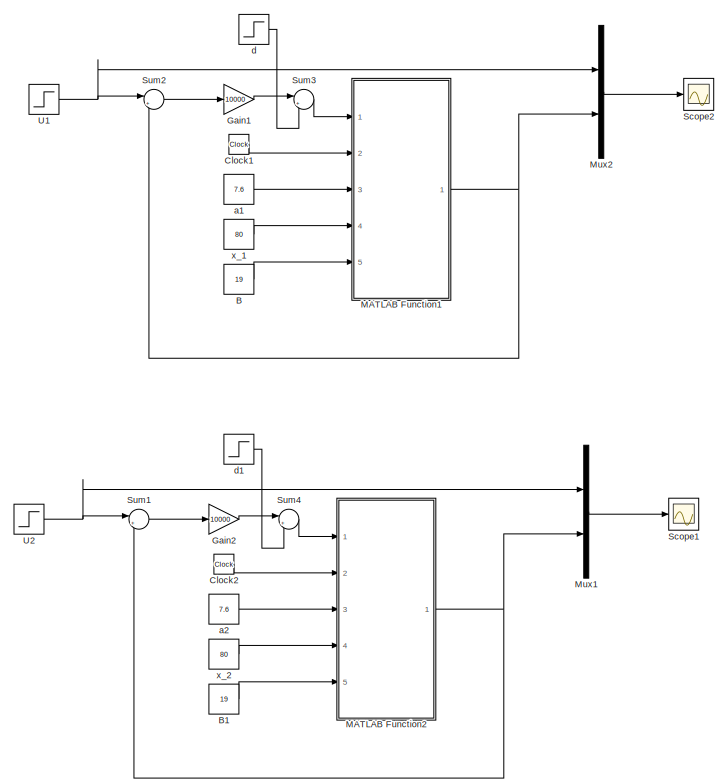
[diagram: root canvas - part 1/2, top center region]
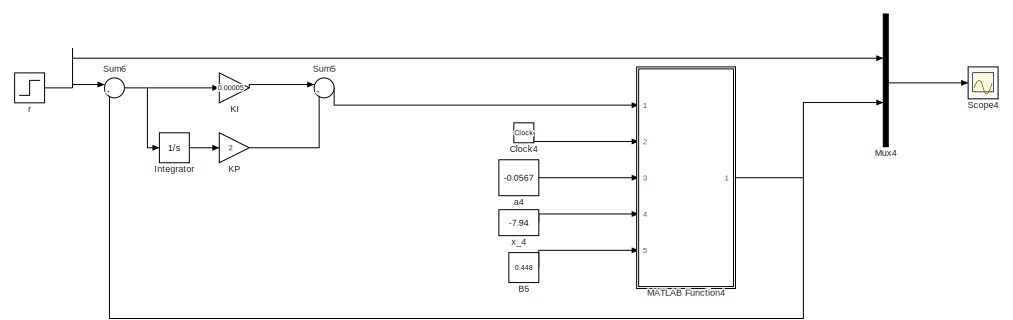
[diagram: root canvas - part 2/2, full width, bottom band]
MODEL slx_400c5a716cbe
KIND model
CONFIG AbsTol = auto
CONFIG EnableMultiTasking = off
CONFIG FixedStep = auto
CONFIG MaxStep = auto
CONFIG MinStep = auto
CONFIG RelTol = 1e-3
CONFIG SampleTimeConstraint = Unconstrained
CONFIG SolverName = VariableStepAuto
CONFIG StartTime = 0.0
CONFIG StopTime = 100
BLOCK [Constant] B
  Value = 19
BLOCK [Constant] B1
  Value = 19
BLOCK [Constant] B5
  Value = 0.448
BLOCK [Clock] Clock1
BLOCK [Clock] Clock2
BLOCK [Clock] Clock4
BLOCK [Gain] Gain1
  Gain = 10000
BLOCK [Gain] Gain2
  Gain = 10000
BLOCK [Integrator] Integrator
  Ports = [1, 1]
BLOCK [Gain] KI
  Gain = 0.00005
BLOCK [Gain] KP
  Gain = 2
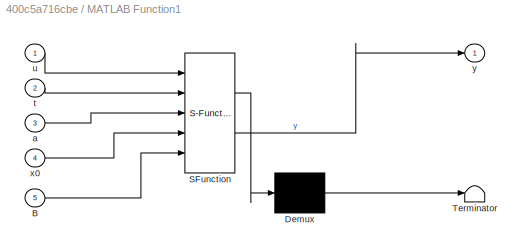
BLOCK [SubSystem] MATLAB Function1
  ErrorFcn = Stateflow.Translate.translate
  PermitHierarchicalResolution = ExplicitOnly
  Ports = [5, 1]
  RequestExecContextInheritance = off
  SFBlockType = MATLAB Function
  TreatAsAtomicUnit = on
BLOCK [Demux] MATLAB Function1/ Demux 
  Outputs = 1
  Ports = [1, 1]
BLOCK [S-Function] MATLAB Function1/ SFunction 
  EnableBusSupport = on
  FunctionName = sf_sfun
  PortCounts = [5 2]
  Ports = [5, 2]
  SFcnIsStateOwnerBlock = off
  SFunctionDeploymentMode = off
  Tag = Stateflow S-Function 1
BLOCK [Terminator] MATLAB Function1/ Terminator 
BLOCK [Inport] MATLAB Function1/B
  Port = 5
BLOCK [Inport] MATLAB Function1/a
  Port = 3
BLOCK [Inport] MATLAB Function1/t
  Port = 2
BLOCK [Inport] MATLAB Function1/u
BLOCK [Inport] MATLAB Function1/x0
  Port = 4
BLOCK [Outport] MATLAB Function1/y
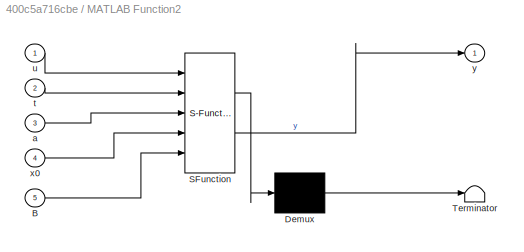
BLOCK [SubSystem] MATLAB Function2
  ErrorFcn = Stateflow.Translate.translate
  PermitHierarchicalResolution = ExplicitOnly
  Ports = [5, 1]
  RequestExecContextInheritance = off
  SFBlockType = MATLAB Function
  TreatAsAtomicUnit = on
BLOCK [Demux] MATLAB Function2/ Demux 
  Outputs = 1
  Ports = [1, 1]
BLOCK [S-Function] MATLAB Function2/ SFunction 
  EnableBusSupport = on
  FunctionName = sf_sfun
  PortCounts = [5 2]
  Ports = [5, 2]
  SFcnIsStateOwnerBlock = off
  SFunctionDeploymentMode = off
  Tag = Stateflow S-Function 2
BLOCK [Terminator] MATLAB Function2/ Terminator 
BLOCK [Inport] MATLAB Function2/B
  Port = 5
BLOCK [Inport] MATLAB Function2/a
  Port = 3
BLOCK [Inport] MATLAB Function2/t
  Port = 2
BLOCK [Inport] MATLAB Function2/u
BLOCK [Inport] MATLAB Function2/x0
  Port = 4
BLOCK [Outport] MATLAB Function2/y
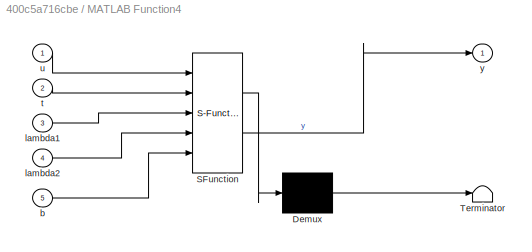
BLOCK [SubSystem] MATLAB Function4
  ErrorFcn = Stateflow.Translate.translate
  PermitHierarchicalResolution = ExplicitOnly
  Ports = [5, 1]
  RequestExecContextInheritance = off
  SFBlockType = MATLAB Function
  TreatAsAtomicUnit = on
BLOCK [Demux] MATLAB Function4/ Demux 
  Outputs = 1
  Ports = [1, 1]
BLOCK [S-Function] MATLAB Function4/ SFunction 
  EnableBusSupport = on
  FunctionName = sf_sfun
  PortCounts = [5 2]
  Ports = [5, 2]
  SFcnIsStateOwnerBlock = off
  SFunctionDeploymentMode = off
  Tag = Stateflow S-Function 4
BLOCK [Terminator] MATLAB Function4/ Terminator 
BLOCK [Inport] MATLAB Function4/b
  Port = 5
BLOCK [Inport] MATLAB Function4/lambda1
  Port = 3
BLOCK [Inport] MATLAB Function4/lambda2
  Port = 4
BLOCK [Inport] MATLAB Function4/t
  Port = 2
BLOCK [Inport] MATLAB Function4/u
BLOCK [Outport] MATLAB Function4/y
BLOCK [Mux] Mux1
  DisplayOption = bar
  Inputs = 2
  Ports = [2, 1]
BLOCK [Mux] Mux2
  DisplayOption = bar
  Inputs = 2
  Ports = [2, 1]
BLOCK [Mux] Mux4
  DisplayOption = bar
  Inputs = 2
  Ports = [2, 1]
BLOCK [Scope] Scope1
  Floating = off
  NumInputPorts = 1
  Ports = [1]
  ScopeSpecificationString = Simulink.scopes.TimeScopeBlockCfg('CurrentConfiguration', extmgr.ConfigurationSet(extmgr.Configuration('Core','General UI',true),extmgr.Configuration('Core','Source UI',true),extmgr.Configuration('Sources','WiredSimulink',true,'DataLoggingVariableName','ScopeData1'),extmgr.Configuration('Visuals','Time Domain',true,'SerializedDisplays',{struct('MinYLimReal','32.69247','MaxYLimReal','107.47861','YL...<+1464ch>
BLOCK [Scope] Scope2
  Floating = off
  NumInputPorts = 1
  Ports = [1]
  ScopeSpecificationString = Simulink.scopes.TimeScopeBlockCfg('CurrentConfiguration', extmgr.ConfigurationSet(extmgr.Configuration('Core','General UI',true),extmgr.Configuration('Core','Source UI',true),extmgr.Configuration('Sources','WiredSimulink',true,'DataLoggingVariableName','ScopeData2'),extmgr.Configuration('Visuals','Time Domain',true,'SerializedDisplays',{struct('MinYLimReal','78.28375','MaxYLimReal','98.9799','YLab...<+1456ch>
BLOCK [Scope] Scope4
  Floating = off
  NumInputPorts = 1
  Ports = [1]
  ScopeSpecificationString = Simulink.scopes.TimeScopeBlockCfg('CurrentConfiguration', extmgr.ConfigurationSet(extmgr.Configuration('Core','General UI',true),extmgr.Configuration('Core','Source UI',true),extmgr.Configuration('Sources','WiredSimulink',true,'DataLoggingVariableName','ScopeData3'),extmgr.Configuration('Visuals','Time Domain',true,'SerializedDisplays',{struct('MinYLimReal','19.15377','MaxYLimReal','20.12646','YLa...<+1458ch>
BLOCK [Sum] Sum1
  Inputs = |+-
  Ports = [2, 1]
BLOCK [Sum] Sum2
  Inputs = |+-
  Ports = [2, 1]
BLOCK [Sum] Sum3
  Inputs = |++
  Ports = [2, 1]
BLOCK [Sum] Sum4
  Inputs = |++
  Ports = [2, 1]
BLOCK [Sum] Sum5
  Inputs = |++
  Ports = [2, 1]
BLOCK [Sum] Sum6
  Inputs = |+-
  Ports = [2, 1]
BLOCK [Step] U1
  After = 80
  Before = 100
  SampleTime = 0
  Time = 20
BLOCK [Step] U2
  After = 80
  Before = 100
  SampleTime = 0
  Time = 20
BLOCK [Constant] a1
  Value = 7.6
BLOCK [Constant] a2
  Value = 7.6
BLOCK [Constant] a4
  Value = -0.0567
BLOCK [Step] d
  After = 3708
  SampleTime = 0
  Time = 10
BLOCK [Step] d1
  After = 3708
  SampleTime = 0
  Time = 10
BLOCK [Step] r
  After = 20
  Before = 10
  SampleTime = 0
  Time = 50
BLOCK [Constant] x_1
  Value = 80
BLOCK [Constant] x_2
  Value = 80
BLOCK [Constant] x_4
  Value = -7.94
LINE B1:1 -> MATLAB Function2:5
LINE B5:1 -> MATLAB Function4:5
LINE B:1 -> MATLAB Function1:5
LINE Clock1:1 -> MATLAB Function1:2
LINE Clock2:1 -> MATLAB Function2:2
LINE Clock4:1 -> MATLAB Function4:2
LINE Gain1:1 -> Sum3:1
LINE Gain2:1 -> Sum4:1
LINE Integrator:1 -> KP:1
LINE KI:1 -> Sum5:1
LINE KP:1 -> Sum5:2
NET MATLAB Function1:1 -> Mux2:2, Sum2:2
NET MATLAB Function2:1 -> Mux1:2, Sum1:2
NET MATLAB Function4:1 -> Mux4:2, Sum6:2
LINE Mux1:1 -> Scope1:1
LINE Mux2:1 -> Scope2:1
LINE Mux4:1 -> Scope4:1
LINE Sum1:1 -> Gain2:1
LINE Sum2:1 -> Gain1:1
LINE Sum3:1 -> MATLAB Function1:1
LINE Sum4:1 -> MATLAB Function2:1
LINE Sum5:1 -> MATLAB Function4:1
NET Sum6:1 -> Integrator:1, KI:1
NET U1:1 -> Mux2:1, Sum2:1
NET U2:1 -> Mux1:1, Sum1:1
LINE a1:1 -> MATLAB Function1:3
LINE a2:1 -> MATLAB Function2:3
LINE a4:1 -> MATLAB Function4:3
LINE d1:1 -> Sum4:2
LINE d:1 -> Sum3:2
NET r:1 -> Mux4:1, Sum6:1
LINE x_1:1 -> MATLAB Function1:4
LINE x_2:1 -> MATLAB Function2:4
LINE x_4:1 -> MATLAB Function4:4
note: NET lines group one-source signal fan-out (src -> all destinations, sorted); 1:1 wires keep LINE
CHART MATLAB Function1 states=1 transitions=1
  STATE_LABEL 'eML_blk_kernel()'
  STATE_LABEL 'SCRIPT:\nfunction y = fcn(u, t, a, x0, B)\n\nA = x0*a -B-u;\ny = (A*exp(-a*t/2560)+u+B)/a;\n'
CHART MATLAB Function2 states=1 transitions=1
  STATE_LABEL 'eML_blk_kernel()'
  STATE_LABEL 'SCRIPT:\nfunction y = fcn(u, t, a, x0, B)\n\nA = x0*a -B-u;\ny = (A*exp(-a*t/2560)+u+B)/a;\n'
CHART MATLAB Function4 states=1 transitions=1
  STATE_LABEL 'eML_blk_kernel()'
  STATE_LABEL 'SCRIPT:\nfunction y = fcn(u, t, lambda1, lambda2, b)\n\ny = (u/b)*(1 - lambda2/(lambda2 - lambda1)*exp(lambda1*t)- lambda1/(lambda1 - lambda2)*exp(lambda2*t));\n\n'
CHART  states=0 transitions=0
CHART  states=0 transitions=0
CHART  states=0 transitions=0
